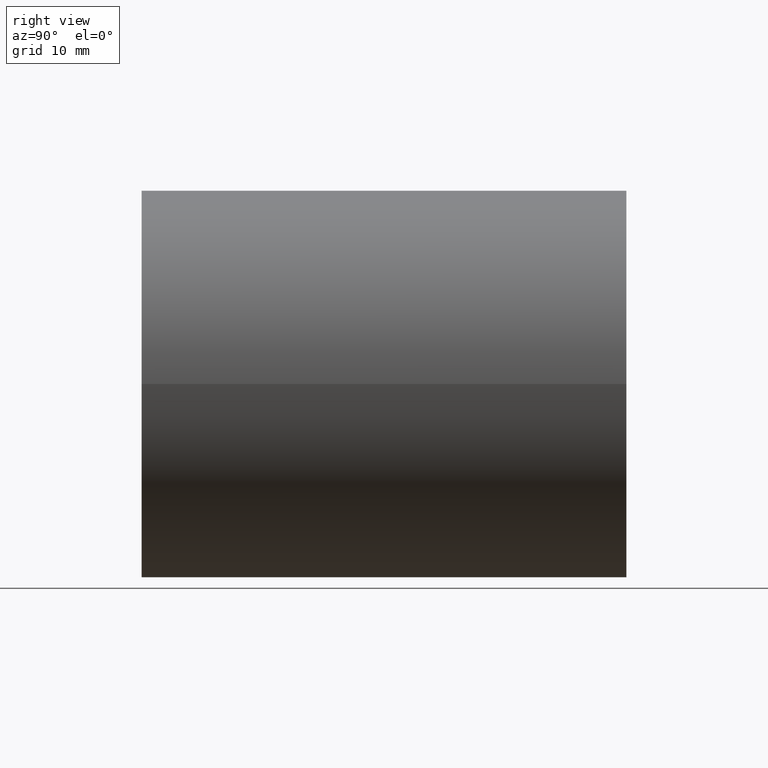
[diagram: clean part render]
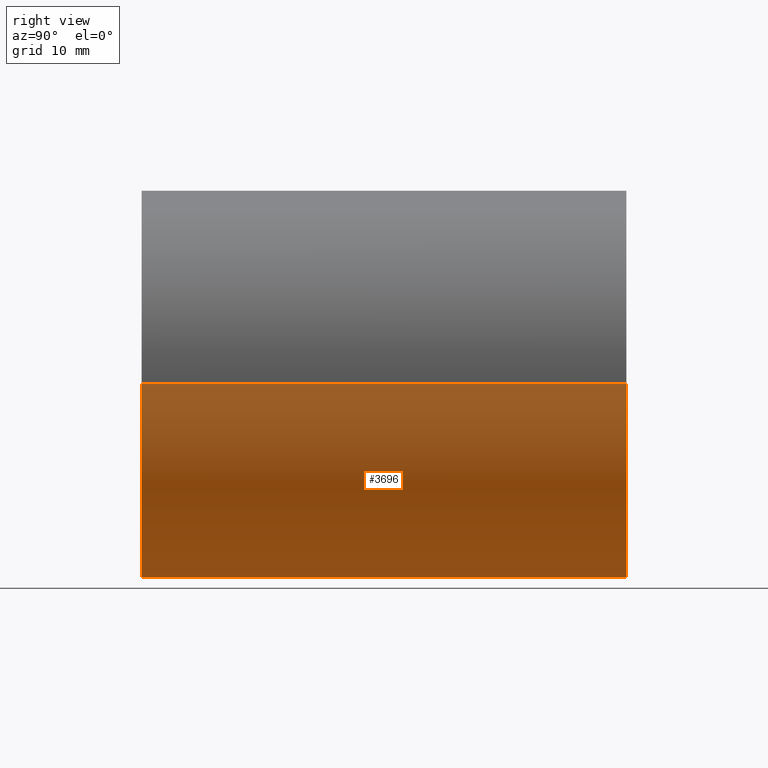
[diagram: same view with one face highlighted and labeled with its STEP entity id]
A machine part, right view. The second image highlights one B-rep face of the part: STEP entity #3696.
In plain terms, the highlighted cylindrical surface (partial cylindrical patch) has radius 20 mm, axis along (-0, 1, -0).
Its self-contained STEP definition (entity closure, byte-faithful):
#19 = AXIS2_PLACEMENT_3D ( 'NONE', #14617, #9762, #9714 ) ;
#738 = ORIENTED_EDGE ( 'NONE', *, *, #5458, .F. ) ;
#1034 = CARTESIAN_POINT ( 'NONE',  ( 20.00000000000000000, 1.387778780781445478E-15, 2.449293598294706907E-15 ) ) ;
#1501 = DIRECTION ( 'NONE',  ( -1.000000000000000000, 0.000000000000000000, 0.000000000000000000 ) ) ;
#2720 = ORIENTED_EDGE ( 'NONE', *, *, #6531, .T. ) ;
#2901 = EDGE_CURVE ( 'NONE', #12740, #14169, #6767, .T. ) ;
#3005 = CARTESIAN_POINT ( 'NONE',  ( 0.000000000000000000, 0.000000000000000000, 0.000000000000000000 ) ) ;
#3050 = DIRECTION ( 'NONE',  ( -6.938893903907228378E-17, 1.000000000000000000, -0.000000000000000000 ) ) ;
#3110 = ORIENTED_EDGE ( 'NONE', *, *, #2901, .T. ) ;
#3626 = CARTESIAN_POINT ( 'NONE',  ( -20.00000000000001066, 50.00000000000000000, 0.000000000000000000 ) ) ;
#3696 = ADVANCED_FACE ( 'NONE', ( #10044 ), #7911, .T. ) ;
#3866 = VERTEX_POINT ( 'NONE', #9268 ) ;
#4045 = VECTOR ( 'NONE', #4741, 1000.000000000000000 ) ;
#4677 = EDGE_LOOP ( 'NONE', ( #11989, #3110, #2720, #738 ) ) ;
#4741 = DIRECTION ( 'NONE',  ( -6.938893903907228378E-17, 1.000000000000000000, -0.000000000000000000 ) ) ;
#5047 = VERTEX_POINT ( 'NONE', #6965 ) ;
#5379 = VECTOR ( 'NONE', #9750, 1000.000000000000000 ) ;
#5458 = EDGE_CURVE ( 'NONE', #5047, #3866, #15366, .T. ) ;
#6531 = EDGE_CURVE ( 'NONE', #14169, #3866, #14791, .T. ) ;
#6767 = CIRCLE ( 'NONE', #7042, 20.00000000000000000 ) ;
#6965 = CARTESIAN_POINT ( 'NONE',  ( 20.00000000000001421, 50.00000000000000000, 2.449293598294708485E-15 ) ) ;
#7042 = AXIS2_PLACEMENT_3D ( 'NONE', #3005, #3050, #14085 ) ;
#7491 = DIRECTION ( 'NONE',  ( -6.938893903907228378E-17, 1.000000000000000000, -0.000000000000000000 ) ) ;
#7911 = CYLINDRICAL_SURFACE ( 'NONE', #14143, 20.00000000000000711 ) ;
#8879 = LINE ( 'NONE', #13436, #4045 ) ;
#9268 = CARTESIAN_POINT ( 'NONE',  ( -20.00000000000001776, 50.00000000000000000, 0.000000000000000000 ) ) ;
#9714 = DIRECTION ( 'NONE',  ( -1.000000000000000000, 0.000000000000000000, 0.000000000000000000 ) ) ;
#9750 = DIRECTION ( 'NONE',  ( -6.938893903907228378E-17, 1.000000000000000000, -0.000000000000000000 ) ) ;
#9762 = DIRECTION ( 'NONE',  ( -6.938893903907228378E-17, 1.000000000000000000, -0.000000000000000000 ) ) ;
#10044 = FACE_OUTER_BOUND ( 'NONE', #4677, .T. ) ;
#11989 = ORIENTED_EDGE ( 'NONE', *, *, #13385, .F. ) ;
#12093 = CARTESIAN_POINT ( 'NONE',  ( -20.00000000000000000, -1.387778780781445676E-15, 0.000000000000000000 ) ) ;
#12456 = CARTESIAN_POINT ( 'NONE',  ( -3.469446951953614189E-15, 50.00000000000000000, 0.000000000000000000 ) ) ;
#12740 = VERTEX_POINT ( 'NONE', #1034 ) ;
#13385 = EDGE_CURVE ( 'NONE', #12740, #5047, #8879, .T. ) ;
#13436 = CARTESIAN_POINT ( 'NONE',  ( 20.00000000000000355, 50.00000000000000000, 2.449293598294707302E-15 ) ) ;
#14085 = DIRECTION ( 'NONE',  ( -1.000000000000000000, -6.938893903907228378E-17, 0.000000000000000000 ) ) ;
#14143 = AXIS2_PLACEMENT_3D ( 'NONE', #12456, #7491, #1501 ) ;
#14169 = VERTEX_POINT ( 'NONE', #12093 ) ;
#14617 = CARTESIAN_POINT ( 'NONE',  ( -3.469446951953614189E-15, 50.00000000000000000, 0.000000000000000000 ) ) ;
#14791 = LINE ( 'NONE', #3626, #5379 ) ;
#15366 = CIRCLE ( 'NONE', #19, 20.00000000000001421 ) ;